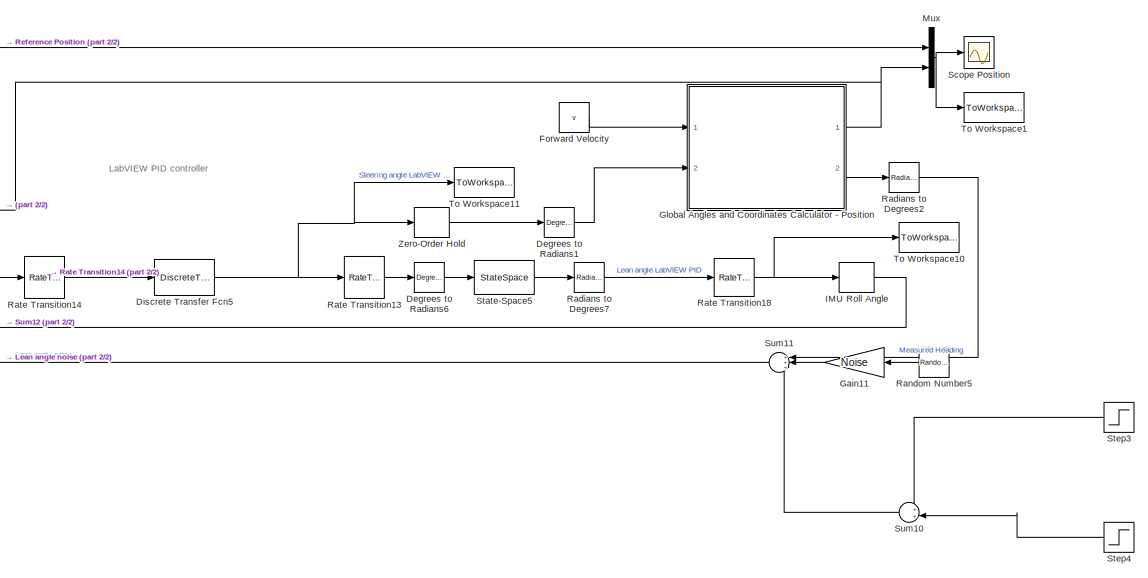
[diagram: root canvas - part 1/2, right side, full height]
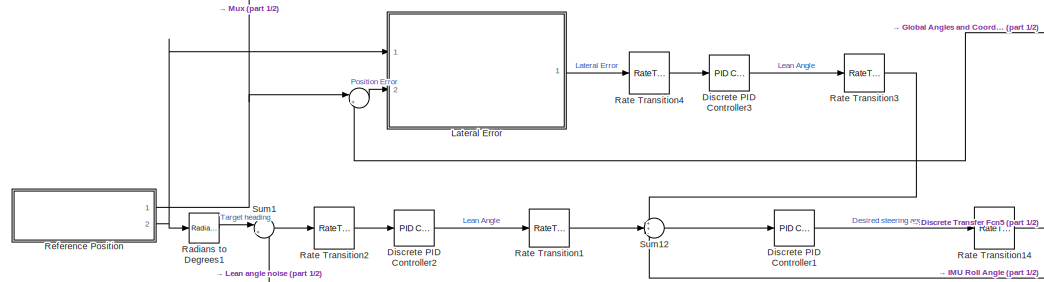
[diagram: root canvas - part 2/2, middle left region]
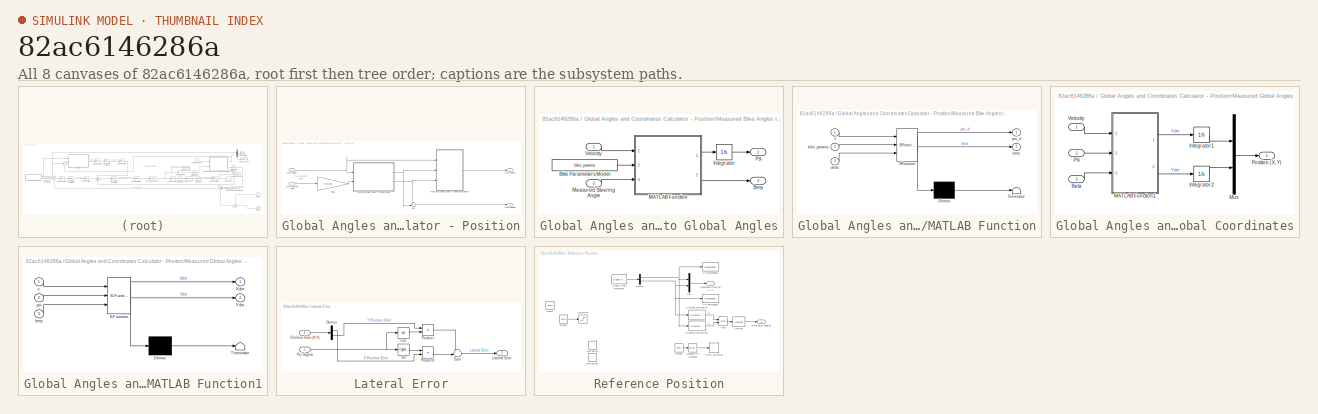
[diagram: thumbnail index - all 8 canvases of the model, root first then tree order]
MODEL slx_82ac6146286a
KIND model
CONFIG AbsTol = auto
CONFIG EnableMultiTasking = off
CONFIG FixedStep = auto
CONFIG MaxStep = auto
CONFIG MinStep = auto
CONFIG RelTol = 1e-3
CONFIG SampleTimeConstraint = Unconstrained
CONFIG Solver = VariableStepAuto
CONFIG SolverName = VariableStepAuto
CONFIG StartTime = 0.0
CONFIG StopTime = 100
BLOCK [Sum]  
  IconShape = round
  InputSameDT = off
  Inputs = |+-
  OutDataTypeStr = Inherit: Inherit via internal rule
  Ports = [2, 1]
  SaturateOnIntegerOverflow = off
BLOCK [Reference] Degrees to Radians1  REF=simulink_extras/Transformations/Degrees to
Radians
  Ports = [1, 1]
  SourceBlock = simulink_extras/Transformations/Degrees to\nRadians
  SourceProductBaseCode = SL
  SourceProductName = Simulink
  SourceType = DegreesToRadians
BLOCK [Reference] Degrees to Radians6  REF=simulink_extras/Transformations/Degrees to
Radians
  Ports = [1, 1]
  SourceBlock = simulink_extras/Transformations/Degrees to\nRadians
  SourceProductBaseCode = SL
  SourceProductName = Simulink
  SourceType = DegreesToRadians
BLOCK [Reference] Discrete PID Controller1  REF=simulink/Continuous/PID Controller
  Ports = [1, 1]
  SourceBlock = simulink/Continuous/PID Controller
  SourceProductBaseCode = SL
  SourceProductName = Simulink
  SourceType = PID 1dof
BLOCK [Reference] Discrete PID Controller2  REF=simulink/Continuous/PID Controller
  Ports = [1, 1]
  SourceBlock = simulink/Continuous/PID Controller
  SourceProductBaseCode = SL
  SourceProductName = Simulink
  SourceType = PID 1dof
BLOCK [Reference] Discrete PID Controller3  REF=simulink/Continuous/PID Controller
  Ports = [1, 1]
  SourceBlock = simulink/Continuous/PID Controller
  SourceProductBaseCode = SL
  SourceProductName = Simulink
  SourceType = PID 1dof
BLOCK [DiscreteTransferFcn] Discrete Transfer Fcn5
  Denominator = sys_dicretePID.Denominator{:}
  InputPortMap = u0
  Numerator = sys_dicretePID.Numerator{:}
  Ports = [1, 1]
BLOCK [Constant] Forward Velocity
  Value = v
BLOCK [Gain] Gain11
  Gain = Noise
  OutDataTypeStr = Inherit: Inherit via internal rule
  ParamDataTypeStr = Inherit: Inherit via internal rule
  SaturateOnIntegerOverflow = off
BLOCK [SubSystem] Global Angles and Coordinates Calculator - Position
  Ports = [2, 2]
  RequestExecContextInheritance = off
  SystemSampleTime = Ts
BLOCK [Gain] Global Angles and Coordinates Calculator - Position/Gain1
  Gain = sin(lambda)
  OutDataTypeStr = Inherit: Inherit via internal rule
  ParamDataTypeStr = Inherit: Inherit via internal rule
  SaturateOnIntegerOverflow = off
BLOCK [SubSystem] Global Angles and Coordinates Calculator - Position/Measured Bike Angles to Global Angles
  Ports = [2, 2]
  RequestExecContextInheritance = off
BLOCK [Constant] Global Angles and Coordinates Calculator - Position/Measured Bike Angles to Global Angles/ Bike Parameters Model 
  Value = bike_params
BLOCK [Outport] Global Angles and Coordinates Calculator - Position/Measured Bike Angles to Global Angles/Beta
  IconDisplay = Port number
  Port = 2
  VectorParamsAs1DForOutWhenUnconnected = off
BLOCK [Integrator] Global Angles and Coordinates Calculator - Position/Measured Bike Angles to Global Angles/Integrator
  Ports = [1, 1]
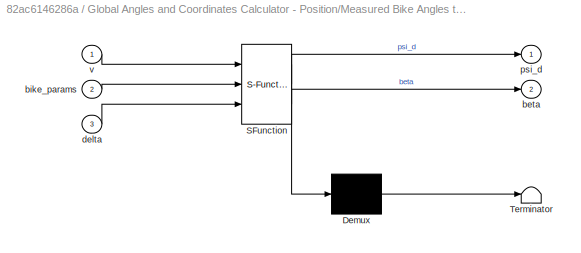
BLOCK [SubSystem] Global Angles and Coordinates Calculator - Position/Measured Bike Angles to Global Angles/MATLAB Function
  ErrorFcn = Stateflow.Translate.translate
  PermitHierarchicalResolution = ExplicitOnly
  Ports = [3, 2]
  RequestExecContextInheritance = off
  SFBlockType = MATLAB Function
  TreatAsAtomicUnit = on
BLOCK [Demux] Global Angles and Coordinates Calculator - Position/Measured Bike Angles to Global Angles/MATLAB Function/ Demux 
  Outputs = 1
  Ports = [1, 1]
BLOCK [S-Function] Global Angles and Coordinates Calculator - Position/Measured Bike Angles to Global Angles/MATLAB Function/ SFunction 
  EnableBusSupport = on
  FunctionName = sf_sfun
  PortCounts = [3 3]
  Ports = [3, 3]
  SFcnIsStateOwnerBlock = off
  SFunctionDeploymentMode = off
  Tag = Stateflow S-Function 9
BLOCK [Terminator] Global Angles and Coordinates Calculator - Position/Measured Bike Angles to Global Angles/MATLAB Function/ Terminator 
BLOCK [Outport] Global Angles and Coordinates Calculator - Position/Measured Bike Angles to Global Angles/MATLAB Function/beta
  IconDisplay = Port number
  Port = 2
  VectorParamsAs1DForOutWhenUnconnected = off
BLOCK [Inport] Global Angles and Coordinates Calculator - Position/Measured Bike Angles to Global Angles/MATLAB Function/bike_params
  IconDisplay = Port number
  Port = 2
BLOCK [Inport] Global Angles and Coordinates Calculator - Position/Measured Bike Angles to Global Angles/MATLAB Function/delta
  IconDisplay = Port number
  Port = 3
BLOCK [Outport] Global Angles and Coordinates Calculator - Position/Measured Bike Angles to Global Angles/MATLAB Function/psi_d
  IconDisplay = Port number
  VectorParamsAs1DForOutWhenUnconnected = off
BLOCK [Inport] Global Angles and Coordinates Calculator - Position/Measured Bike Angles to Global Angles/MATLAB Function/v
  IconDisplay = Port number
BLOCK [Inport] Global Angles and Coordinates Calculator - Position/Measured Bike Angles to Global Angles/Measured Steering Angle
  IconDisplay = Port number
  Port = 2
BLOCK [Outport] Global Angles and Coordinates Calculator - Position/Measured Bike Angles to Global Angles/Psi
  IconDisplay = Port number
  VectorParamsAs1DForOutWhenUnconnected = off
BLOCK [Inport] Global Angles and Coordinates Calculator - Position/Measured Bike Angles to Global Angles/Velocity
  IconDisplay = Port number
BLOCK [SubSystem] Global Angles and Coordinates Calculator - Position/Measured Global Angles to Global Coordinates
  Ports = [3, 1]
  RequestExecContextInheritance = off
BLOCK [Inport] Global Angles and Coordinates Calculator - Position/Measured Global Angles to Global Coordinates/Beta
  IconDisplay = Port number
  Port = 3
BLOCK [Integrator] Global Angles and Coordinates Calculator - Position/Measured Global Angles to Global Coordinates/Integrator1
  Ports = [1, 1]
BLOCK [Integrator] Global Angles and Coordinates Calculator - Position/Measured Global Angles to Global Coordinates/Integrator2
  Ports = [1, 1]
BLOCK [SubSystem] Global Angles and Coordinates Calculator - Position/Measured Global Angles to Global Coordinates/MATLAB Function1
  ErrorFcn = Stateflow.Translate.translate
  PermitHierarchicalResolution = ExplicitOnly
  Ports = [3, 2]
  RequestExecContextInheritance = off
  SFBlockType = MATLAB Function
  TreatAsAtomicUnit = on
BLOCK [Demux] Global Angles and Coordinates Calculator - Position/Measured Global Angles to Global Coordinates/MATLAB Function1/ Demux 
  Outputs = 1
  Ports = [1, 1]
BLOCK [S-Function] Global Angles and Coordinates Calculator - Position/Measured Global Angles to Global Coordinates/MATLAB Function1/ SFunction 
  EnableBusSupport = on
  FunctionName = sf_sfun
  PortCounts = [3 3]
  Ports = [3, 3]
  SFcnIsStateOwnerBlock = off
  SFunctionDeploymentMode = off
  Tag = Stateflow S-Function 11
BLOCK [Terminator] Global Angles and Coordinates Calculator - Position/Measured Global Angles to Global Coordinates/MATLAB Function1/ Terminator 
BLOCK [Outport] Global Angles and Coordinates Calculator - Position/Measured Global Angles to Global Coordinates/MATLAB Function1/Xdot
  IconDisplay = Port number
  VectorParamsAs1DForOutWhenUnconnected = off
BLOCK [Outport] Global Angles and Coordinates Calculator - Position/Measured Global Angles to Global Coordinates/MATLAB Function1/Ydot
  IconDisplay = Port number
  Port = 2
  VectorParamsAs1DForOutWhenUnconnected = off
BLOCK [Inport] Global Angles and Coordinates Calculator - Position/Measured Global Angles to Global Coordinates/MATLAB Function1/beta
  IconDisplay = Port number
  Port = 3
BLOCK [Inport] Global Angles and Coordinates Calculator - Position/Measured Global Angles to Global Coordinates/MATLAB Function1/psi
  IconDisplay = Port number
  Port = 2
BLOCK [Inport] Global Angles and Coordinates Calculator - Position/Measured Global Angles to Global Coordinates/MATLAB Function1/v
  IconDisplay = Port number
BLOCK [Mux] Global Angles and Coordinates Calculator - Position/Measured Global Angles to Global Coordinates/Mux
  DisplayOption = bar
  Inputs = 2
  Ports = [2, 1]
BLOCK [Outport] Global Angles and Coordinates Calculator - Position/Measured Global Angles to Global Coordinates/Position (X, Y)
  IconDisplay = Port number
  VectorParamsAs1DForOutWhenUnconnected = off
BLOCK [Inport] Global Angles and Coordinates Calculator - Position/Measured Global Angles to Global Coordinates/Psi
  IconDisplay = Port number
  Port = 2
BLOCK [Inport] Global Angles and Coordinates Calculator - Position/Measured Global Angles to Global Coordinates/Velocity
  IconDisplay = Port number
BLOCK [Sum] Global Angles and Coordinates Calculator - Position/Sum
  IconShape = round
  InputSameDT = off
  Inputs = ++|
  OutDataTypeStr = Inherit: Inherit via internal rule
  Ports = [2, 1]
  SaturateOnIntegerOverflow = off
BLOCK [Outport] Global Angles and Coordinates Calculator - Position/True Heading
  IconDisplay = Port number
  Port = 2
  VectorParamsAs1DForOutWhenUnconnected = off
BLOCK [Outport] Global Angles and Coordinates Calculator - Position/True Position
  IconDisplay = Port number
  VectorParamsAs1DForOutWhenUnconnected = off
BLOCK [Inport] Global Angles and Coordinates Calculator - Position/True Steering Angle
  IconDisplay = Port number
  Port = 2
BLOCK [Inport] Global Angles and Coordinates Calculator - Position/True Velocity
  IconDisplay = Port number
BLOCK [ZeroOrderHold] IMU Roll Angle
  SampleTime = Ts
BLOCK [SubSystem] Lateral Error
  Ports = [2, 1]
  RequestExecContextInheritance = off
  SystemSampleTime = Ts
BLOCK [Trigonometry] Lateral Error/Cos
  Operator = cos
  Ports = [1, 1]
BLOCK [Demux] Lateral Error/Demux
  DisplayOption = bar
  Outputs = 2
  Ports = [1, 2]
BLOCK [Outport] Lateral Error/Lateral Error
  IconDisplay = Port number
  VectorParamsAs1DForOutWhenUnconnected = off
BLOCK [Inport] Lateral Error/Position Error (X,Y)
  IconDisplay = Port number
  Port = 2
BLOCK [Product] Lateral Error/Product
  InputSameDT = off
  OutDataTypeStr = Inherit: Inherit via internal rule
  Ports = [2, 1]
  RndMeth = Floor
  SaturateOnIntegerOverflow = off
BLOCK [Product] Lateral Error/Product1
  InputSameDT = off
  OutDataTypeStr = Inherit: Inherit via internal rule
  Ports = [2, 1]
  RndMeth = Floor
  SaturateOnIntegerOverflow = off
BLOCK [Inport] Lateral Error/Psi Sigma
  IconDisplay = Port number
BLOCK [Trigonometry] Lateral Error/Sin
  Ports = [1, 1]
BLOCK [Sum] Lateral Error/Sum
  IconShape = round
  InputSameDT = off
  Inputs = +-|
  OutDataTypeStr = Inherit: Inherit via internal rule
  Ports = [2, 1]
  SaturateOnIntegerOverflow = off
BLOCK [Mux] Mux
  DisplayOption = bar
  Inputs = 2
  Ports = [2, 1]
BLOCK [Reference] Radians to Degrees1  REF=simulink_extras/Transformations/Radians
to Degrees
  Ports = [1, 1]
  SourceBlock = simulink_extras/Transformations/Radians\nto Degrees
  SourceProductBaseCode = SL
  SourceProductName = Simulink
  SourceType = RadiansToDegrees
BLOCK [Reference] Radians to Degrees2  REF=simulink_extras/Transformations/Radians
to Degrees
  Ports = [1, 1]
  SourceBlock = simulink_extras/Transformations/Radians\nto Degrees
  SourceProductBaseCode = SL
  SourceProductName = Simulink
  SourceType = RadiansToDegrees
BLOCK [Reference] Radians to Degrees7  REF=simulink_extras/Transformations/Radians
to Degrees
  Ports = [1, 1]
  SourceBlock = simulink_extras/Transformations/Radians\nto Degrees
  SourceProductBaseCode = SL
  SourceProductName = Simulink
  SourceType = RadiansToDegrees
BLOCK [RandomNumber] Random Number5
  SampleTime = Ts
  Variance = 0.0001
BLOCK [RateTransition] Rate Transition1
  OutPortSampleTime = Ts
BLOCK [RateTransition] Rate Transition13
  OutPortSampleTime = 0
BLOCK [RateTransition] Rate Transition14
  OutPortSampleTime = Tsm
BLOCK [RateTransition] Rate Transition18
  OutPortSampleTime = Ts
BLOCK [RateTransition] Rate Transition2
  OutPortSampleTime = TsD
BLOCK [RateTransition] Rate Transition3
  OutPortSampleTime = Ts
BLOCK [RateTransition] Rate Transition4
  OutPortSampleTime = TsD
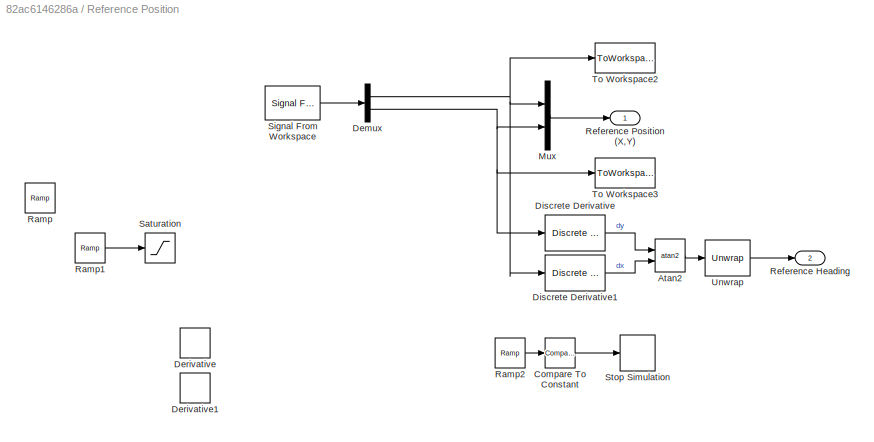
BLOCK [SubSystem] Reference Position
  Ports = [0, 2]
  RequestExecContextInheritance = off
BLOCK [Trigonometry] Reference Position/Atan2
  Operator = atan2
  Ports = [2, 1]
BLOCK [Reference] Reference Position/Compare To Constant  REF=simulink/Logic and Bit
Operations/Compare
To Constant
  Ports = [1, 1]
  SourceBlock = simulink/Logic and Bit\nOperations/Compare\nTo Constant
  SourceProductBaseCode = SL
  SourceProductName = Simulink
  SourceType = Compare To Constant
BLOCK [Demux] Reference Position/Demux
  DisplayOption = bar
  Outputs = 2
  Ports = [1, 2]
BLOCK [Derivative] Reference Position/Derivative
BLOCK [Derivative] Reference Position/Derivative1
BLOCK [Reference] Reference Position/Discrete Derivative  REF=simulink/Discrete/Discrete Derivative
  Ports = [1, 1]
  SourceBlock = simulink/Discrete/Discrete Derivative
  SourceProductBaseCode = SL
  SourceProductName = Simulink
  SourceType = Discrete Derivative
BLOCK [Reference] Reference Position/Discrete Derivative1  REF=simulink/Discrete/Discrete Derivative
  Ports = [1, 1]
  SourceBlock = simulink/Discrete/Discrete Derivative
  SourceProductBaseCode = SL
  SourceProductName = Simulink
  SourceType = Discrete Derivative
BLOCK [Mux] Reference Position/Mux
  DisplayOption = bar
  Inputs = 2
  Ports = [2, 1]
BLOCK [Reference] Reference Position/Ramp  REF=simulink/Sources/Ramp
  Ports = [0, 1]
  SourceBlock = simulink/Sources/Ramp
  SourceProductBaseCode = SL
  SourceProductName = Simulink
  SourceType = Ramp
BLOCK [Reference] Reference Position/Ramp1  REF=simulink/Sources/Ramp
  Ports = [0, 1]
  SourceBlock = simulink/Sources/Ramp
  SourceProductBaseCode = SL
  SourceProductName = Simulink
  SourceType = Ramp
BLOCK [Reference] Reference Position/Ramp2  REF=simulink/Sources/Ramp
  Ports = [0, 1]
  SourceBlock = simulink/Sources/Ramp
  SourceProductBaseCode = SL
  SourceProductName = Simulink
  SourceType = Ramp
BLOCK [Outport] Reference Position/Reference Heading
  IconDisplay = Port number
  Port = 2
  VectorParamsAs1DForOutWhenUnconnected = off
BLOCK [Outport] Reference Position/Reference Position (X,Y)
  IconDisplay = Port number
  VectorParamsAs1DForOutWhenUnconnected = off
BLOCK [Saturate] Reference Position/Saturation
  InputPortMap = u0
  LowerLimit = 0
  Ports = [1, 1]
  UpperLimit = 4
BLOCK [Reference] Reference Position/Signal From Workspace  REF=dspsrcs4/Signal From
Workspace
  Ports = [0, 1]
  SourceBlock = dspsrcs4/Signal From\nWorkspace
  SourceProductBaseCode = DS
  SourceProductName = DSP System Toolbox
  SourceType = Signal From Workspace
BLOCK [Stop] Reference Position/Stop Simulation
BLOCK [ToWorkspace] Reference Position/To Workspace2
  FixptAsFi = on
  MaxDataPoints = inf
  Ports = [1]
  SampleTime = TsD
  SaveFormat = Timeseries
  VariableName = X_SIGMA
BLOCK [ToWorkspace] Reference Position/To Workspace3
  FixptAsFi = on
  MaxDataPoints = inf
  Ports = [1]
  SampleTime = TsD
  SaveFormat = Timeseries
  VariableName = Y_SIGMA
BLOCK [Reference] Reference Position/Unwrap  REF=dspsigops/Unwrap
  Ports = [1, 1]
  SourceBlock = dspsigops/Unwrap
  SourceProductBaseCode = DS
  SourceProductName = DSP System Toolbox
  SourceType = Unwrap
  UserDataPersistent = on
BLOCK [Scope] Scope Position
  Commented = on
  Floating = off
  NumInputPorts = 1
  Ports = [1]
  ScopeSpecificationString = Simulink.scopes.TimeScopeBlockCfg('CurrentConfiguration', extmgr.ConfigurationSet(extmgr.Configuration('Core','General UI',true),extmgr.Configuration('Core','Source UI',true),extmgr.Configuration('Sources','WiredSimulink',true),extmgr.Configuration('Visuals','Time Domain',true,'SerializedDisplays',{struct('MinYLimReal','-108.84994','MaxYLimReal','145.88777','YLabelReal','','MinYLimMag',' 0.00000',...<+1610ch>
BLOCK [StateSpace] State-Space5
  A = A
  B = B
  C = C
  D = D
  InitialCondition = [deg2rad(Init_Angle/C(1,1)) 0]
  Ports = [1, 1]
BLOCK [Step] Step3
  After = -FinalValue
  SampleTime = Ts
  Time = 1.25
  VectorParams1D = off
BLOCK [Step] Step4
  After = FinalValue
  SampleTime = Ts
  VectorParams1D = off
BLOCK [Sum] Sum1
  IconShape = round
  InputSameDT = off
  Inputs = |+-
  OutDataTypeStr = Inherit: Inherit via internal rule
  Ports = [2, 1]
  SaturateOnIntegerOverflow = off
BLOCK [Sum] Sum10
  IconShape = round
  InputSameDT = off
  Inputs = ++|
  OutDataTypeStr = Inherit: Inherit via internal rule
  Ports = [2, 1]
  SaturateOnIntegerOverflow = off
BLOCK [Sum] Sum11
  IconShape = round
  InputSameDT = off
  Inputs = +++
  OutDataTypeStr = Inherit: Inherit via internal rule
  Ports = [3, 1]
  SaturateOnIntegerOverflow = off
BLOCK [Sum] Sum12
  IconShape = round
  InputSameDT = off
  Inputs = ++-
  OutDataTypeStr = Inherit: Inherit via internal rule
  Ports = [3, 1]
  SaturateOnIntegerOverflow = off
BLOCK [ToWorkspace] To Workspace1
  FixptAsFi = on
  MaxDataPoints = inf
  Ports = [1]
  SampleTime = -1
  SaveFormat = Timeseries
  VariableName = position
BLOCK [ToWorkspace] To Workspace10
  FixptAsFi = on
  MaxDataPoints = inf
  Ports = [1]
  SampleTime = -1
  VariableName = PIDLean1
BLOCK [ToWorkspace] To Workspace11
  FixptAsFi = on
  MaxDataPoints = inf
  Ports = [1]
  SampleTime = -1
  VariableName = PIDSteer1
BLOCK [ZeroOrderHold] Zero-Order Hold
  SampleTime = Tsm
ANNOTATION (root): LabVIEW PID controller
ANNOTATION Global Angles and Coordinates Calculator - Position: True Steering Angle
LINE  :1 -> Lateral Error:2
LINE Degrees to Radians1:1 -> Global Angles and Coordinates Calculator - Position:2
LINE Degrees to Radians6:1 -> State-Space5:1
LINE Discrete PID Controller1:1 -> Rate Transition14:1
LINE Discrete PID Controller2:1 -> Rate Transition1:1
LINE Discrete PID Controller3:1 -> Rate Transition3:1
NET Discrete Transfer Fcn5:1 -> Rate Transition13:1, To Workspace11:1, Zero-Order Hold:1
LINE Forward Velocity:1 -> Global Angles and Coordinates Calculator - Position:1
LINE Gain11:1 -> Sum11:2
LINE Global Angles and Coordinates Calculator - Position/Gain1:1 -> Global Angles and Coordinates Calculator - Position/Measured Bike Angles to Global Angles:2
LINE Global Angles and Coordinates Calculator - Position/Measured Bike Angles to Global Angles/ Bike Parameters Model :1 -> Global Angles and Coordinates Calculator - Position/Measured Bike Angles to Global Angles/MATLAB Function:2
LINE Global Angles and Coordinates Calculator - Position/Measured Bike Angles to Global Angles/Integrator:1 -> Global Angles and Coordinates Calculator - Position/Measured Bike Angles to Global Angles/Psi:1
LINE Global Angles and Coordinates Calculator - Position/Measured Bike Angles to Global Angles/MATLAB Function:1 -> Global Angles and Coordinates Calculator - Position/Measured Bike Angles to Global Angles/Integrator:1
LINE Global Angles and Coordinates Calculator - Position/Measured Bike Angles to Global Angles/MATLAB Function:2 -> Global Angles and Coordinates Calculator - Position/Measured Bike Angles to Global Angles/Beta:1
LINE Global Angles and Coordinates Calculator - Position/Measured Bike Angles to Global Angles/Measured Steering Angle:1 -> Global Angles and Coordinates Calculator - Position/Measured Bike Angles to Global Angles/MATLAB Function:3
LINE Global Angles and Coordinates Calculator - Position/Measured Bike Angles to Global Angles/Velocity:1 -> Global Angles and Coordinates Calculator - Position/Measured Bike Angles to Global Angles/MATLAB Function:1
NET Global Angles and Coordinates Calculator - Position/Measured Bike Angles to Global Angles:1 -> Global Angles and Coordinates Calculator - Position/Measured Global Angles to Global Coordinates:2, Global Angles and Coordinates Calculator - Position/Sum:2
NET Global Angles and Coordinates Calculator - Position/Measured Bike Angles to Global Angles:2 -> Global Angles and Coordinates Calculator - Position/Measured Global Angles to Global Coordinates:3, Global Angles and Coordinates Calculator - Position/Sum:1
LINE Global Angles and Coordinates Calculator - Position/Measured Global Angles to Global Coordinates/Beta:1 -> Global Angles and Coordinates Calculator - Position/Measured Global Angles to Global Coordinates/MATLAB Function1:3
LINE Global Angles and Coordinates Calculator - Position/Measured Global Angles to Global Coordinates/Integrator1:1 -> Global Angles and Coordinates Calculator - Position/Measured Global Angles to Global Coordinates/Mux:1
LINE Global Angles and Coordinates Calculator - Position/Measured Global Angles to Global Coordinates/Integrator2:1 -> Global Angles and Coordinates Calculator - Position/Measured Global Angles to Global Coordinates/Mux:2
LINE Global Angles and Coordinates Calculator - Position/Measured Global Angles to Global Coordinates/MATLAB Function1:1 -> Global Angles and Coordinates Calculator - Position/Measured Global Angles to Global Coordinates/Integrator1:1
LINE Global Angles and Coordinates Calculator - Position/Measured Global Angles to Global Coordinates/MATLAB Function1:2 -> Global Angles and Coordinates Calculator - Position/Measured Global Angles to Global Coordinates/Integrator2:1
LINE Global Angles and Coordinates Calculator - Position/Measured Global Angles to Global Coordinates/Mux:1 -> Global Angles and Coordinates Calculator - Position/Measured Global Angles to Global Coordinates/Position (X, Y):1
LINE Global Angles and Coordinates Calculator - Position/Measured Global Angles to Global Coordinates/Psi:1 -> Global Angles and Coordinates Calculator - Position/Measured Global Angles to Global Coordinates/MATLAB Function1:2
LINE Global Angles and Coordinates Calculator - Position/Measured Global Angles to Global Coordinates/Velocity:1 -> Global Angles and Coordinates Calculator - Position/Measured Global Angles to Global Coordinates/MATLAB Function1:1
LINE Global Angles and Coordinates Calculator - Position/Measured Global Angles to Global Coordinates:1 -> Global Angles and Coordinates Calculator - Position/True Position:1
LINE Global Angles and Coordinates Calculator - Position/Sum:1 -> Global Angles and Coordinates Calculator - Position/True Heading:1
LINE Global Angles and Coordinates Calculator - Position/True Steering Angle:1 -> Global Angles and Coordinates Calculator - Position/Gain1:1
NET Global Angles and Coordinates Calculator - Position/True Velocity:1 -> Global Angles and Coordinates Calculator - Position/Measured Bike Angles to Global Angles:1, Global Angles and Coordinates Calculator - Position/Measured Global Angles to Global Coordinates:1
NET Global Angles and Coordinates Calculator - Position:1 ->  :2, Mux:2
LINE Global Angles and Coordinates Calculator - Position:2 -> Radians to Degrees2:1
LINE IMU Roll Angle:1 -> Sum12:3
LINE Lateral Error/Cos:1 -> Lateral Error/Product:2
LINE Lateral Error/Demux:1 -> Lateral Error/Product1:2
LINE Lateral Error/Demux:2 -> Lateral Error/Product:1
LINE Lateral Error/Position Error (X,Y):1 -> Lateral Error/Demux:1
LINE Lateral Error/Product1:1 -> Lateral Error/Sum:2
LINE Lateral Error/Product:1 -> Lateral Error/Sum:1
NET Lateral Error/Psi Sigma:1 -> Lateral Error/Cos:1, Lateral Error/Sin:1
LINE Lateral Error/Sin:1 -> Lateral Error/Product1:1
LINE Lateral Error/Sum:1 -> Lateral Error/Lateral Error:1
LINE Lateral Error:1 -> Rate Transition4:1
NET Mux:1 -> Scope Position:1, To Workspace1:1
LINE Radians to Degrees1:1 -> Sum1:1
LINE Radians to Degrees2:1 -> Sum11:1
LINE Radians to Degrees7:1 -> Rate Transition18:1
LINE Random Number5:1 -> Gain11:1
LINE Rate Transition13:1 -> Degrees to Radians6:1
LINE Rate Transition14:1 -> Discrete Transfer Fcn5:1
NET Rate Transition18:1 -> IMU Roll Angle:1, To Workspace10:1
LINE Rate Transition1:1 -> Sum12:2
LINE Rate Transition2:1 -> Discrete PID Controller2:1
LINE Rate Transition3:1 -> Sum12:1
LINE Rate Transition4:1 -> Discrete PID Controller3:1
LINE Reference Position/Atan2:1 -> Reference Position/Unwrap:1
LINE Reference Position/Compare To Constant:1 -> Reference Position/Stop Simulation:1
NET Reference Position/Demux:1 -> Reference Position/Discrete Derivative1:1, Reference Position/Mux:1, Reference Position/To Workspace2:1
NET Reference Position/Demux:2 -> Reference Position/Discrete Derivative:1, Reference Position/Mux:2, Reference Position/To Workspace3:1
LINE Reference Position/Discrete Derivative1:1 -> Reference Position/Atan2:2
LINE Reference Position/Discrete Derivative:1 -> Reference Position/Atan2:1
LINE Reference Position/Mux:1 -> Reference Position/Reference Position (X,Y):1
LINE Reference Position/Ramp1:1 -> Reference Position/Saturation:1
LINE Reference Position/Ramp2:1 -> Reference Position/Compare To Constant:1
LINE Reference Position/Signal From Workspace:1 -> Reference Position/Demux:1
LINE Reference Position/Unwrap:1 -> Reference Position/Reference Heading:1
NET Reference Position:1 ->  :1, Mux:1
NET Reference Position:2 -> Lateral Error:1, Radians to Degrees1:1
LINE State-Space5:1 -> Radians to Degrees7:1
LINE Step3:1 -> Sum10:1
LINE Step4:1 -> Sum10:2
LINE Sum10:1 -> Sum11:3
LINE Sum11:1 -> Sum1:2
LINE Sum12:1 -> Discrete PID Controller1:1
LINE Sum1:1 -> Rate Transition2:1
LINE Zero-Order Hold:1 -> Degrees to Radians1:1
note: NET lines group one-source signal fan-out (src -> all destinations, sorted); 1:1 wires keep LINE
CHART Global Angles and Coordinates Calculator - Position/Measured Bike Angles to Global Angles/MATLAB Function states=1 transitions=1
  STATE_LABEL 'eML_blk_kernel()'
  STATE_LABEL 'SCRIPT:\nfunction [psi_d, beta]  = fcn(v, bike_params, delta)\n\nb = bike_params(3);\na = bike_params(4);\n\nbeta = atan((a / (b)) * tan(delta));\npsi_d = (v / a) * sin(beta);\n'
CHART Global Angles and Coordinates Calculator - Position/Measured Global Angles 
to Global Coordinates/MATLAB Function1 states=1 transitions=1
  STATE_LABEL 'eML_blk_kernel()'
  STATE_LABEL 'SCRIPT:\nfunction [Xdot, Ydot]  = fcn(v, psi, beta)\n\nXdot = v * cos(psi + beta);\nYdot = v * sin(psi + beta);'
